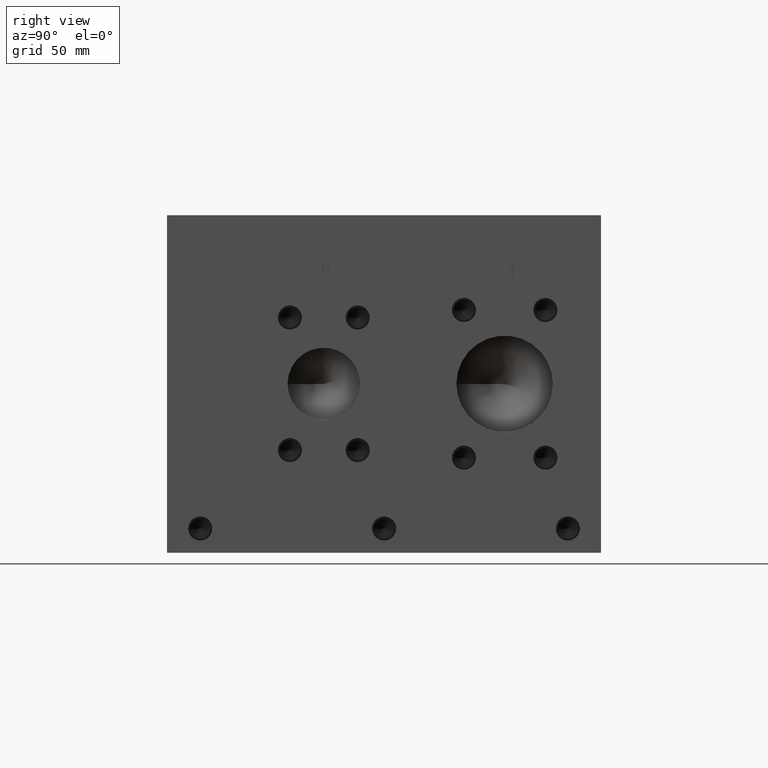
[diagram: clean part render]
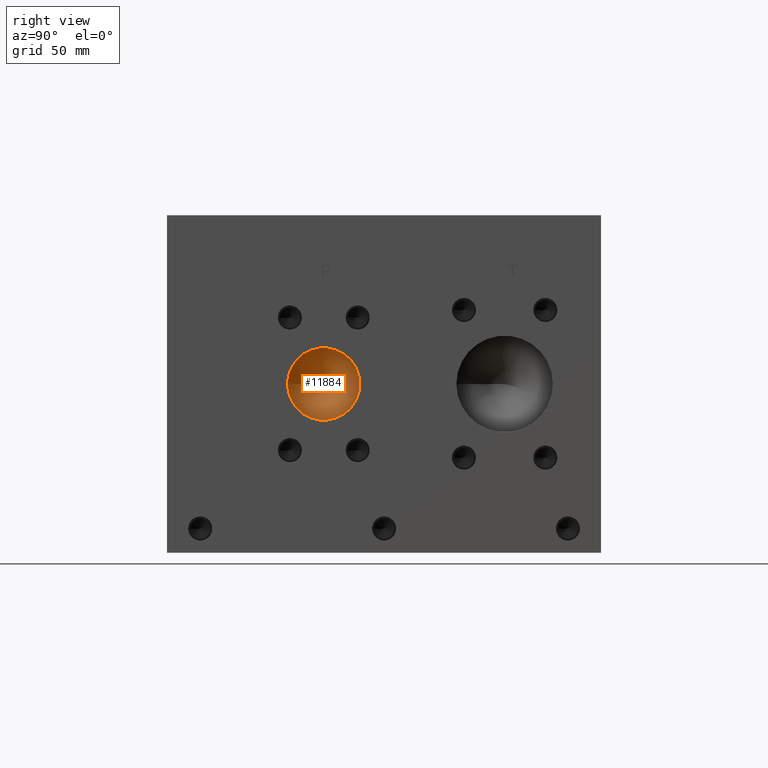
[diagram: same view with one face highlighted and labeled with its STEP entity id]
A machine part, right view. The second image highlights one B-rep face of the part: STEP entity #11884.
In plain terms, the highlighted conical surface has half-angle 60 deg.
Its self-contained STEP definition (entity closure, byte-faithful):
#128=CONICAL_SURFACE('',#12560,9.525,1.0471975511966);
#322=CIRCLE('',#12561,19.05);
#323=CIRCLE('',#12562,19.05);
#1465=FACE_OUTER_BOUND('',#2177,.T.);
#2177=EDGE_LOOP('',(#9958,#9959,#9960,#9961));
#3331=LINE('',#19922,#4411);
#4411=VECTOR('',#14910,9.525);
#5455=VERTEX_POINT('',#19918);
#5456=VERTEX_POINT('',#19919);
#5457=VERTEX_POINT('',#19921);
#7037=EDGE_CURVE('',#5455,#5456,#322,.T.);
#7038=EDGE_CURVE('',#5456,#5457,#3331,.T.);
#7039=EDGE_CURVE('',#5456,#5455,#323,.T.);
#9958=ORIENTED_EDGE('',*,*,#7037,.T.);
#9959=ORIENTED_EDGE('',*,*,#7038,.T.);
#9960=ORIENTED_EDGE('',*,*,#7038,.F.);
#9961=ORIENTED_EDGE('',*,*,#7039,.T.);
#11884=ADVANCED_FACE('',(#1465),#128,.F.);
#12560=AXIS2_PLACEMENT_3D('',#19917,#14906,#14907);
#12561=AXIS2_PLACEMENT_3D('',#19920,#14908,#14909);
#12562=AXIS2_PLACEMENT_3D('',#19923,#14911,#14912);
#14906=DIRECTION('center_axis',(1.,0.,0.));
#14907=DIRECTION('ref_axis',(0.,1.,0.));
#14908=DIRECTION('center_axis',(1.,0.,0.));
#14909=DIRECTION('ref_axis',(0.,1.,0.));
#14910=DIRECTION('',(-0.5,0.866025403784439,1.06057523872491E-16));
#14911=DIRECTION('center_axis',(1.,0.,0.));
#14912=DIRECTION('ref_axis',(0.,1.,0.));
#19917=CARTESIAN_POINT('Origin',(237.502218685969,82.55,88.9));
#19918=CARTESIAN_POINT('',(243.00148,101.6,88.9));
#19919=CARTESIAN_POINT('',(243.00148,63.5,88.9));
#19920=CARTESIAN_POINT('Origin',(243.00148,82.55,88.9));
#19921=CARTESIAN_POINT('',(232.002957371938,82.55,88.9));
#19922=CARTESIAN_POINT('',(237.502218685969,73.025,88.9));
#19923=CARTESIAN_POINT('Origin',(243.00148,82.55,88.9));